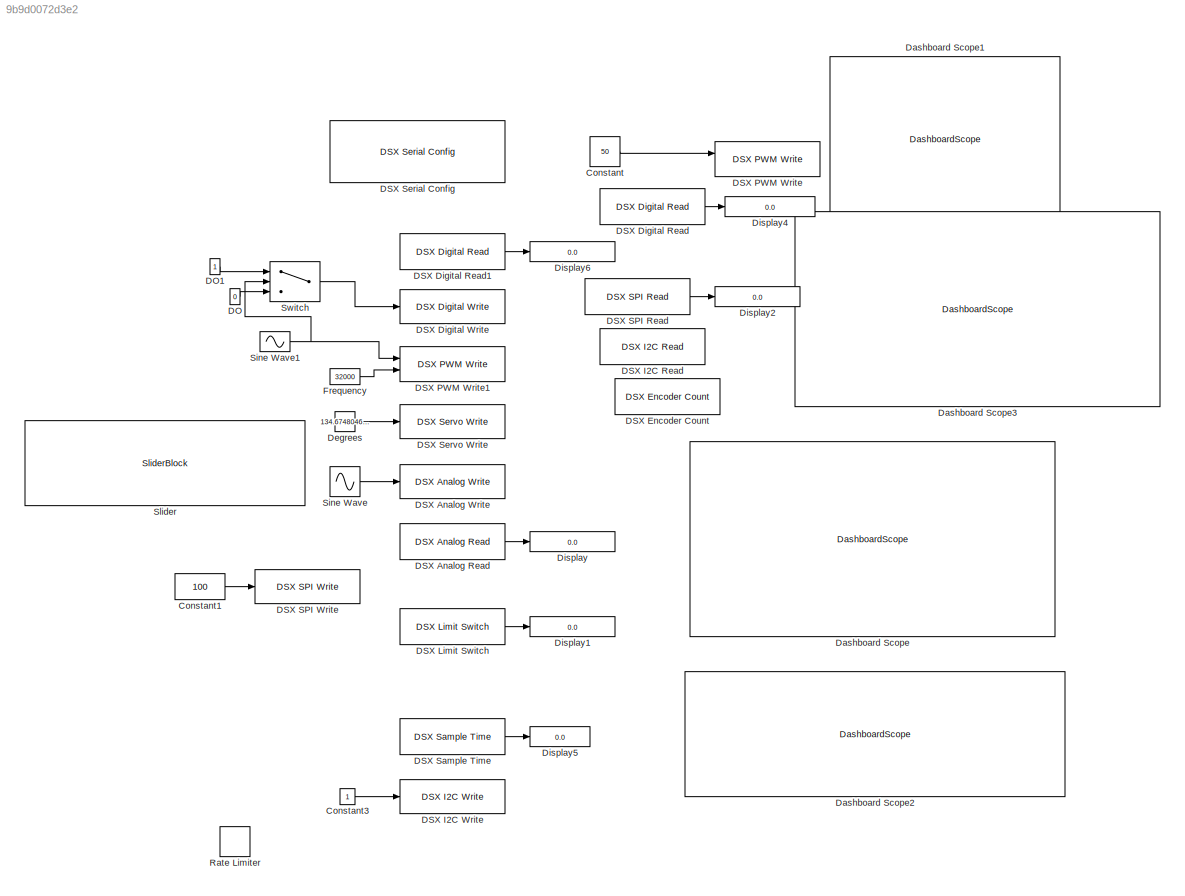
MODEL slx_9b9d0072d3e2
KIND model
CONFIG AbsTol = auto
CONFIG EnableMultiTasking = off
CONFIG FixedStep = 0.001
CONFIG MaxStep = auto
CONFIG MinStep = auto
CONFIG RelTol = 1e-3
CONFIG SampleTimeConstraint = Unconstrained
CONFIG SolverName = FixedStepAuto
CONFIG StartTime = 0.0
CONFIG StopTime = inf
BLOCK [Constant] Constant
  Commented = on
  Value = 50
BLOCK [Constant] Constant1
  Value = 100
BLOCK [Constant] Constant3
  Commented = on
BLOCK [Constant] DO
  Commented = on
  Value = 0
BLOCK [Constant] DO1
  Commented = on
BLOCK [Reference] DSX Analog Read  REF=DSX_Lib/Read Blocks/DSX Analog Read
  Commented = on
  NameLocation = top
  Ports = [0, 1]
  SourceBlock = DSX_Lib/Read Blocks/DSX Analog Read
  SourceProductName = DSX Library
BLOCK [Reference] DSX Analog Write  REF=DSX_Lib/Write Blocks/DSX Analog Write
  Commented = on
  NameLocation = top
  Ports = [1]
  SourceBlock = DSX_Lib/Write Blocks/DSX Analog Write
  SourceProductName = DSX Library
BLOCK [Reference] DSX Digital Read  REF=DSX_Lib/Read Blocks/DSX Digital Read
  Commented = on
  NameLocation = top
  Ports = [0, 1]
  SourceBlock = DSX_Lib/Read Blocks/DSX Digital Read
  SourceProductName = DSX Library
BLOCK [Reference] DSX Digital Read1  REF=DSX_Lib/Read Blocks/DSX Digital Read
  Commented = on
  NameLocation = top
  Ports = [0, 1]
  SourceBlock = DSX_Lib/Read Blocks/DSX Digital Read
  SourceProductName = DSX Library
BLOCK [Reference] DSX Digital Write  REF=DSX_Lib/Write Blocks/DSX Digital Write
  Commented = on
  NameLocation = top
  Ports = [1]
  SourceBlock = DSX_Lib/Write Blocks/DSX Digital Write
  SourceProductName = DSX Library
BLOCK [Reference] DSX Encoder Count  REF=DSX_Lib/Read Blocks/DSX Encoder Count
  Commented = on
  NameLocation = top
  Ports = [0, 1]
  SourceBlock = DSX_Lib/Read Blocks/DSX Encoder Count
  SourceProductName = DSX Library
BLOCK [Reference] DSX I2C Read  REF=DSX_Lib/Read Blocks/DSX I2C Read
  Commented = on
  NameLocation = top
  Ports = [0, 1]
  SourceBlock = DSX_Lib/Read Blocks/DSX I2C Read
  SourceProductName = DSX Library
BLOCK [Reference] DSX I2C Write  REF=DSX_Lib/Write Blocks/DSX I2C Write
  Commented = on
  NameLocation = top
  Ports = [1]
  SourceBlock = DSX_Lib/Write Blocks/DSX I2C Write
  SourceProductName = DSX Library
BLOCK [Reference] DSX Limit Switch  REF=DSX_Lib/Read Blocks/DSX Limit Switch
  Commented = on
  NameLocation = top
  Ports = [0, 1]
  SourceBlock = DSX_Lib/Read Blocks/DSX Limit Switch
  SourceProductName = DSX Library
BLOCK [Reference] DSX PWM Write  REF=DSX_Lib/Write Blocks/DSX PWM Write
  Commented = on
  NameLocation = top
  Ports = [2]
  SourceBlock = DSX_Lib/Write Blocks/DSX PWM Write
  SourceProductName = DSX Library
BLOCK [Reference] DSX PWM Write1  REF=DSX_Lib/Write Blocks/DSX PWM Write
  Commented = on
  NameLocation = top
  Ports = [2]
  SourceBlock = DSX_Lib/Write Blocks/DSX PWM Write
  SourceProductName = DSX Library
BLOCK [Reference] DSX SPI Read  REF=DSX_Lib/Read Blocks/DSX SPI Read
  Commented = on
  NameLocation = top
  Ports = [0, 1]
  SourceBlock = DSX_Lib/Read Blocks/DSX SPI Read
  SourceProductName = DSX Library
BLOCK [Reference] DSX SPI Write  REF=DSX_Lib/Write Blocks/DSX SPI Write
  NameLocation = top
  Ports = [1]
  SourceBlock = DSX_Lib/Write Blocks/DSX SPI Write
  SourceProductName = DSX Library
BLOCK [Reference] DSX Sample Time  REF=DSX_Lib/Read Blocks/DSX Sample Time
  NameLocation = top
  Ports = [0, 1]
  SourceBlock = DSX_Lib/Read Blocks/DSX Sample Time
  SourceProductName = DSX Library
BLOCK [Reference] DSX Serial Config  REF=DSX_Lib/DSX Serial Config
  NameLocation = top
  Ports = []
  SourceBlock = DSX_Lib/DSX Serial Config
  SourceProductName = DSX Library
BLOCK [Reference] DSX Servo Write  REF=DSX_Lib/Write Blocks/DSX Servo Write
  Commented = on
  NameLocation = top
  Ports = [1]
  SourceBlock = DSX_Lib/Write Blocks/DSX Servo Write
  SourceProductName = DSX Library
BLOCK [DashboardScope] Dashboard Scope
  Commented = on
  Ymax = 8500
  Ymin = 0
BLOCK [DashboardScope] Dashboard Scope1
BLOCK [DashboardScope] Dashboard Scope2
  TimeSpan = 1
  Ymax = 1
  Ymin = 0
BLOCK [DashboardScope] Dashboard Scope3
  Commented = on
  TimeSpan = 1
  Ymax = 100
  Ymin = 0
BLOCK [Constant] Degrees
  Commented = on
  Value = 134.6748046875
BLOCK [Display] Display
  Decimation = 1
  Ports = [1]
BLOCK [Display] Display1
  Commented = on
  Decimation = 1
  Ports = [1]
BLOCK [Display] Display2
  Commented = on
  Decimation = 1
  Ports = [1]
BLOCK [Display] Display4
  Commented = on
  Decimation = 1
  Ports = [1]
BLOCK [Display] Display5
  Decimation = 1
  Ports = [1]
BLOCK [Display] Display6
  Commented = on
  Decimation = 1
  Ports = [1]
BLOCK [Constant] Frequency
  Commented = on
  Value = 32000
  VectorParams1D = off
BLOCK [RateLimiter] Rate Limiter
  SampleTimeMode = inherited
BLOCK [Sin] Sine Wave
  Amplitude = 1024
  Bias = 1024
  Commented = on
  Frequency = 0.05
  Ports = [0, 1]
  SampleTime = 0
BLOCK [Sin] Sine Wave1
  Amplitude = 50
  Bias = 50
  Commented = on
  Frequency = 10
  Ports = [0, 1]
  SampleTime = 0
BLOCK [SliderBlock] Slider
  ScaleMax = 180
BLOCK [Switch] Switch
  Commented = on
  Criteria = u2 > Threshold
  InputSameDT = off
  SaturateOnIntegerOverflow = off
  Threshold = 50
LINE Constant1:1 -> DSX SPI Write:1
LINE Constant3:1 -> DSX I2C Write:1
LINE Constant:1 -> DSX PWM Write:1
LINE DO1:1 -> Switch:1
LINE DO:1 -> Switch:3
LINE DSX Analog Read:1 -> Display:1
LINE DSX Digital Read1:1 -> Display6:1
LINE DSX Digital Read:1 -> Display4:1
LINE DSX Limit Switch:1 -> Display1:1
LINE DSX SPI Read:1 -> Display2:1
LINE DSX Sample Time:1 -> Display5:1
LINE Degrees:1 -> DSX Servo Write:1
LINE Frequency:1 -> DSX PWM Write1:2
NET Sine Wave1:1 -> DSX PWM Write1:1, Switch:2
LINE Sine Wave:1 -> DSX Analog Write:1
LINE Switch:1 -> DSX Digital Write:1
note: NET lines group one-source signal fan-out (src -> all destinations, sorted); 1:1 wires keep LINE
